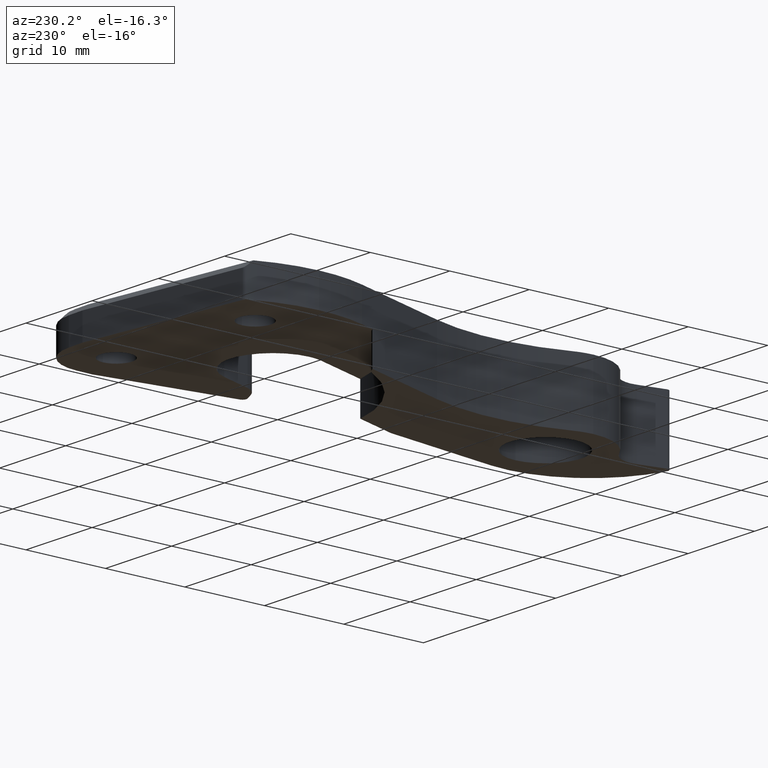
[diagram: clean part render]
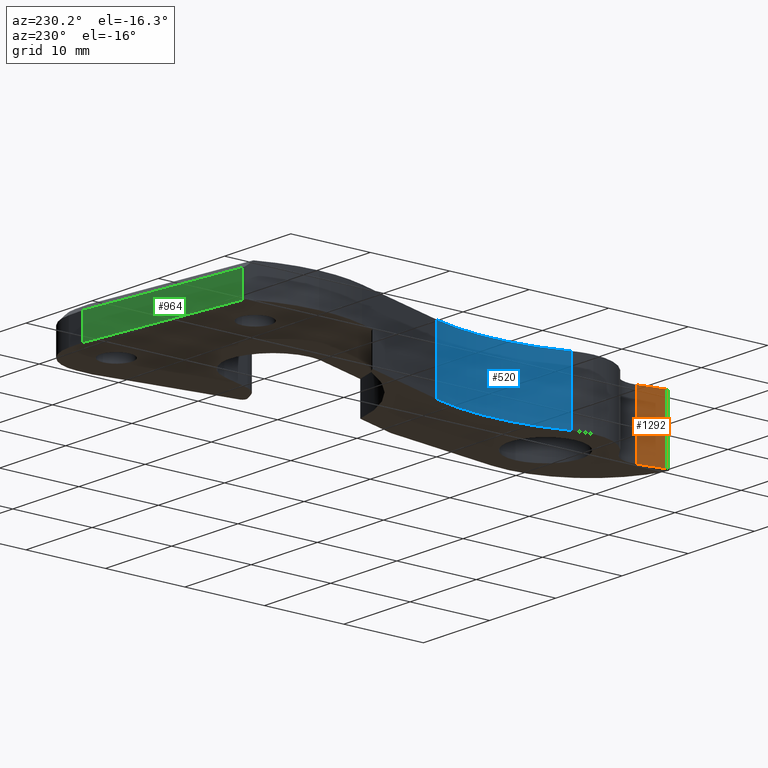
[diagram: same view with three faces highlighted in distinct colors, each labeled with its STEP entity id]
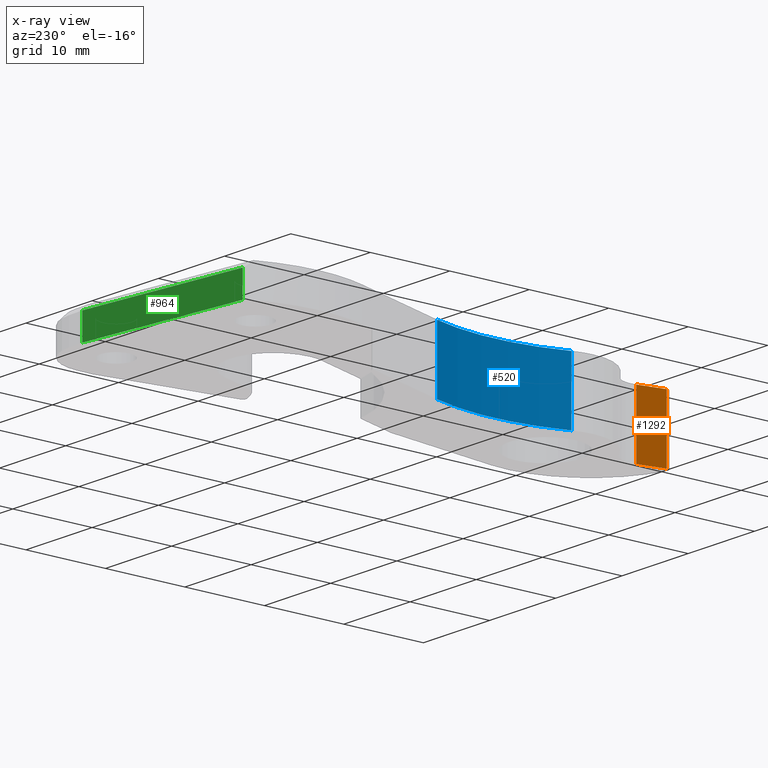
[diagram: x-ray of the same camera — body ghosted, the three highlighted faces saturated]
A machine part, auxiliary view with three faces highlighted in distinct colors.
The next image is the same camera in x-ray (body ghosted, the three faces saturated) — at least one of them is partly hidden behind the body in this view.
Their STEP definitions:

[orange] entity #1292 — the highlighted planar face has unit normal (0.9807, -0.1957, 0).
#1 = LINE ( 'NONE', #667, #214 ) ;
#208 = VERTEX_POINT ( 'NONE', #1283 ) ;
#214 = VECTOR ( 'NONE', #1202, 1000.000000000000000 ) ;
#242 = VECTOR ( 'NONE', #927, 1000.000000000000000 ) ;
#302 = ORIENTED_EDGE ( 'NONE', *, *, #709, .F. ) ;
#315 = CARTESIAN_POINT ( 'NONE',  ( 42.32099969886074575, -48.74949727865347882, 7.999999999999401368 ) ) ;
#346 = ORIENTED_EDGE ( 'NONE', *, *, #353, .F. ) ;
#353 = EDGE_CURVE ( 'NONE', #828, #873, #672, .T. ) ;
#383 = CARTESIAN_POINT ( 'NONE',  ( 42.32099969886074575, -48.74949727865347882, 7.999999999999401368 ) ) ;
#388 = VECTOR ( 'NONE', #1253, 1000.000000000000000 ) ;
#484 = DIRECTION ( 'NONE',  ( 0.0000000000000000000, 0.0000000000000000000, -1.000000000000000000 ) ) ;
#486 = VERTEX_POINT ( 'NONE', #315 ) ;
#574 = PLANE ( 'NONE',  #1222 ) ;
#596 = FACE_OUTER_BOUND ( 'NONE', #823, .T. ) ;
#654 = LINE ( 'NONE', #1018, #1190 ) ;
#667 = CARTESIAN_POINT ( 'NONE',  ( 42.32099969886074575, -48.74949727865347882, 0.0000000000000000000 ) ) ;
#672 = LINE ( 'NONE', #1186, #388 ) ;
#709 = EDGE_CURVE ( 'NONE', #486, #828, #1158, .T. ) ;
#716 = CARTESIAN_POINT ( 'NONE',  ( 41.66956189435859415, -52.01435714912340558, 7.999999999999401368 ) ) ;
#728 = ORIENTED_EDGE ( 'NONE', *, *, #1198, .T. ) ;
#823 = EDGE_LOOP ( 'NONE', ( #728, #346, #302, #845 ) ) ;
#828 = VERTEX_POINT ( 'NONE', #716 ) ;
#845 = ORIENTED_EDGE ( 'NONE', *, *, #1084, .T. ) ;
#873 = VERTEX_POINT ( 'NONE', #1237 ) ;
#916 = CARTESIAN_POINT ( 'NONE',  ( 42.32099969886074575, -48.74949727865347882, 7.999999999999401368 ) ) ;
#927 = DIRECTION ( 'NONE',  ( -0.1956730189229047845, -0.9806691948183121621, 0.0000000000000000000 ) ) ;
#1018 = CARTESIAN_POINT ( 'NONE',  ( 42.32099969886074575, -48.74949727865347882, 7.999999999999401368 ) ) ;
#1084 = EDGE_CURVE ( 'NONE', #486, #208, #654, .T. ) ;
#1158 = LINE ( 'NONE', #916, #242 ) ;
#1184 = DIRECTION ( 'NONE',  ( 0.9806691948183120511, -0.1956730189229047567, 0.0000000000000000000 ) ) ;
#1186 = CARTESIAN_POINT ( 'NONE',  ( 41.66956189435859415, -52.01435714912340558, 7.999999999999401368 ) ) ;
#1190 = VECTOR ( 'NONE', #484, 1000.000000000000000 ) ;
#1198 = EDGE_CURVE ( 'NONE', #208, #873, #1, .T. ) ;
#1202 = DIRECTION ( 'NONE',  ( -0.1956730189229047845, -0.9806691948183121621, 0.0000000000000000000 ) ) ;
#1221 = DIRECTION ( 'NONE',  ( 0.1956730189229047567, 0.9806691948183120511, 0.0000000000000000000 ) ) ;
#1222 = AXIS2_PLACEMENT_3D ( 'NONE', #383, #1184, #1221 ) ;
#1237 = CARTESIAN_POINT ( 'NONE',  ( 41.66956189435859415, -52.01435714912340558, 0.0000000000000000000 ) ) ;
#1253 = DIRECTION ( 'NONE',  ( 0.0000000000000000000, 0.0000000000000000000, -1.000000000000000000 ) ) ;
#1283 = CARTESIAN_POINT ( 'NONE',  ( 42.32099969886074575, -48.74949727865347882, 0.0000000000000000000 ) ) ;
#1292 = ADVANCED_FACE ( 'NONE', ( #596 ), #574, .F. ) ;

[blue] entity #520 — the highlighted cylindrical surface (partial cylindrical patch) has radius 25.4 mm, axis along (0, 0, -1).
#44 = LINE ( 'NONE', #595, #853 ) ;
#96 = CARTESIAN_POINT ( 'NONE',  ( 37.45633833008918145, -36.51520063727554799, 0.0000000000000000000 ) ) ;
#103 = DIRECTION ( 'NONE',  ( 0.0000000000000000000, 0.0000000000000000000, -1.000000000000000000 ) ) ;
#151 = ORIENTED_EDGE ( 'NONE', *, *, #462, .T. ) ;
#152 = CARTESIAN_POINT ( 'NONE',  ( 37.45633833008918145, -36.51520063727554799, 7.999999999999401368 ) ) ;
#256 = CIRCLE ( 'NONE', #937, 25.39999999998429914 ) ;
#278 = ORIENTED_EDGE ( 'NONE', *, *, #482, .F. ) ;
#397 = DIRECTION ( 'NONE',  ( 0.0000000000000000000, 0.0000000000000000000, -1.000000000000000000 ) ) ;
#462 = EDGE_CURVE ( 'NONE', #822, #1335, #256, .T. ) ;
#482 = EDGE_CURVE ( 'NONE', #978, #1335, #1075, .T. ) ;
#503 = VECTOR ( 'NONE', #1371, 1000.000000000000000 ) ;
#520 = ADVANCED_FACE ( 'NONE', ( #1328 ), #1297, .F. ) ;
#595 = CARTESIAN_POINT ( 'NONE',  ( 37.49025783987821825, -19.64771667769097618, 7.999999999999401368 ) ) ;
#645 = CARTESIAN_POINT ( 'NONE',  ( 37.49025783987821825, -19.64771667769097618, 7.999999999999401368 ) ) ;
#647 = CARTESIAN_POINT ( 'NONE',  ( 13.51438769079326896, -28.03327870974691294, 7.999999999999401368 ) ) ;
#774 = CARTESIAN_POINT ( 'NONE',  ( 13.51438769079326896, -28.03327870974691294, 0.0000000000000000000 ) ) ;
#819 = DIRECTION ( 'NONE',  ( -1.000000000000000000, 0.0000000000000000000, 0.0000000000000000000 ) ) ;
#822 = VERTEX_POINT ( 'NONE', #1373 ) ;
#832 = DIRECTION ( 'NONE',  ( 1.000000000000000000, 0.0000000000000000000, 0.0000000000000000000 ) ) ;
#853 = VECTOR ( 'NONE', #1071, 1000.000000000000000 ) ;
#862 = ORIENTED_EDGE ( 'NONE', *, *, #890, .T. ) ;
#865 = AXIS2_PLACEMENT_3D ( 'NONE', #647, #103, #832 ) ;
#878 = ORIENTED_EDGE ( 'NONE', *, *, #1338, .F. ) ;
#890 = EDGE_CURVE ( 'NONE', #930, #822, #44, .T. ) ;
#930 = VERTEX_POINT ( 'NONE', #645 ) ;
#937 = AXIS2_PLACEMENT_3D ( 'NONE', #774, #942, #1048 ) ;
#942 = DIRECTION ( 'NONE',  ( 0.0000000000000000000, 0.0000000000000000000, -1.000000000000000000 ) ) ;
#948 = CARTESIAN_POINT ( 'NONE',  ( 37.45633833008918145, -36.51520063727554799, 7.999999999999401368 ) ) ;
#961 = CARTESIAN_POINT ( 'NONE',  ( 13.51438769079326896, -28.03327870974691294, 7.999999999999401368 ) ) ;
#978 = VERTEX_POINT ( 'NONE', #152 ) ;
#1048 = DIRECTION ( 'NONE',  ( 1.000000000000000000, 0.0000000000000000000, 0.0000000000000000000 ) ) ;
#1064 = AXIS2_PLACEMENT_3D ( 'NONE', #961, #397, #819 ) ;
#1071 = DIRECTION ( 'NONE',  ( 0.0000000000000000000, 0.0000000000000000000, -1.000000000000000000 ) ) ;
#1075 = LINE ( 'NONE', #948, #503 ) ;
#1214 = EDGE_LOOP ( 'NONE', ( #151, #278, #878, #862 ) ) ;
#1297 = CYLINDRICAL_SURFACE ( 'NONE', #1064, 25.39999999998429914 ) ;
#1328 = FACE_OUTER_BOUND ( 'NONE', #1214, .T. ) ;
#1335 = VERTEX_POINT ( 'NONE', #96 ) ;
#1338 = EDGE_CURVE ( 'NONE', #930, #978, #1360, .T. ) ;
#1360 = CIRCLE ( 'NONE', #865, 25.39999999998429914 ) ;
#1371 = DIRECTION ( 'NONE',  ( 0.0000000000000000000, 0.0000000000000000000, -1.000000000000000000 ) ) ;
#1373 = CARTESIAN_POINT ( 'NONE',  ( 37.49025783987821825, -19.64771667769097618, 0.0000000000000000000 ) ) ;

[green] entity #964 — the highlighted planar face has unit normal (0.1153, -0.9933, 0).
#15 = LINE ( 'NONE', #753, #563 ) ;
#17 = LINE ( 'NONE', #345, #565 ) ;
#35 = EDGE_LOOP ( 'NONE', ( #320, #789, #1099, #539 ) ) ;
#42 = DIRECTION ( 'NONE',  ( 0.9933338861425214938, 0.1152726795081823047, 0.0000000000000000000 ) ) ;
#190 = CARTESIAN_POINT ( 'NONE',  ( 33.75957847148752933, 7.949184774040912949, 3.999999999999701572 ) ) ;
#248 = DIRECTION ( 'NONE',  ( 0.0000000000000000000, 0.0000000000000000000, -1.000000000000000000 ) ) ;
#255 = FACE_OUTER_BOUND ( 'NONE', #35, .T. ) ;
#320 = ORIENTED_EDGE ( 'NONE', *, *, #451, .F. ) ;
#345 = CARTESIAN_POINT ( 'NONE',  ( 33.75957847148752933, 7.949184774040912949, 7.999999999999401368 ) ) ;
#356 = PLANE ( 'NONE',  #1003 ) ;
#382 = CARTESIAN_POINT ( 'NONE',  ( 54.96821620000046238, 10.41036780000001016, 7.249999999999722000 ) ) ;
#422 = LINE ( 'NONE', #750, #1021 ) ;
#451 = EDGE_CURVE ( 'NONE', #706, #490, #17, .T. ) ;
#473 = VERTEX_POINT ( 'NONE', #517 ) ;
#490 = VERTEX_POINT ( 'NONE', #190 ) ;
#517 = CARTESIAN_POINT ( 'NONE',  ( 54.96821620000046238, 10.41036780000001016, 3.999999999999701572 ) ) ;
#519 = DIRECTION ( 'NONE',  ( 0.0000000000000000000, 0.0000000000000000000, -1.000000000000000000 ) ) ;
#539 = ORIENTED_EDGE ( 'NONE', *, *, #1063, .T. ) ;
#552 = DIRECTION ( 'NONE',  ( -0.9933338861425216049, -0.1152726795081823186, 0.0000000000000000000 ) ) ;
#563 = VECTOR ( 'NONE', #648, 999.9999999999998863 ) ;
#565 = VECTOR ( 'NONE', #519, 1000.000000000000000 ) ;
#648 = DIRECTION ( 'NONE',  ( 0.9933338861425216049, 0.1152726795081823186, 0.0000000000000000000 ) ) ;
#671 = DIRECTION ( 'NONE',  ( 0.1152726795081823047, -0.9933338861425214938, 0.0000000000000000000 ) ) ;
#681 = LINE ( 'NONE', #906, #1257 ) ;
#706 = VERTEX_POINT ( 'NONE', #1357 ) ;
#750 = CARTESIAN_POINT ( 'NONE',  ( 54.96821620000046238, 10.41036780000001016, 7.999999999999401368 ) ) ;
#753 = CARTESIAN_POINT ( 'NONE',  ( 54.96821620000046238, 10.41036780000001016, 7.249999999999722000 ) ) ;
#778 = EDGE_CURVE ( 'NONE', #1083, #473, #422, .T. ) ;
#789 = ORIENTED_EDGE ( 'NONE', *, *, #1293, .T. ) ;
#906 = CARTESIAN_POINT ( 'NONE',  ( 54.96821620000046238, 10.41036780000001016, 3.999999999999701572 ) ) ;
#964 = ADVANCED_FACE ( 'NONE', ( #255 ), #356, .F. ) ;
#1003 = AXIS2_PLACEMENT_3D ( 'NONE', #1323, #671, #42 ) ;
#1021 = VECTOR ( 'NONE', #248, 1000.000000000000000 ) ;
#1063 = EDGE_CURVE ( 'NONE', #473, #490, #681, .T. ) ;
#1083 = VERTEX_POINT ( 'NONE', #382 ) ;
#1099 = ORIENTED_EDGE ( 'NONE', *, *, #778, .T. ) ;
#1257 = VECTOR ( 'NONE', #552, 999.9999999999998863 ) ;
#1293 = EDGE_CURVE ( 'NONE', #706, #1083, #15, .T. ) ;
#1323 = CARTESIAN_POINT ( 'NONE',  ( 54.96821620000046238, 10.41036780000001016, 7.999999999999401368 ) ) ;
#1357 = CARTESIAN_POINT ( 'NONE',  ( 33.75957847148752933, 7.949184774040912949, 7.249999999999722000 ) ) ;